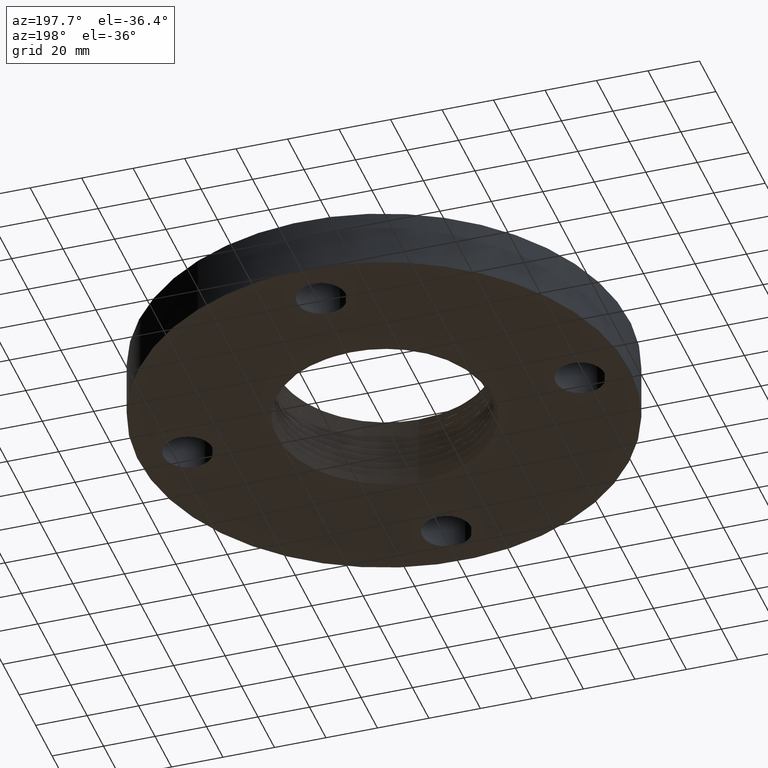
[diagram: clean part render]
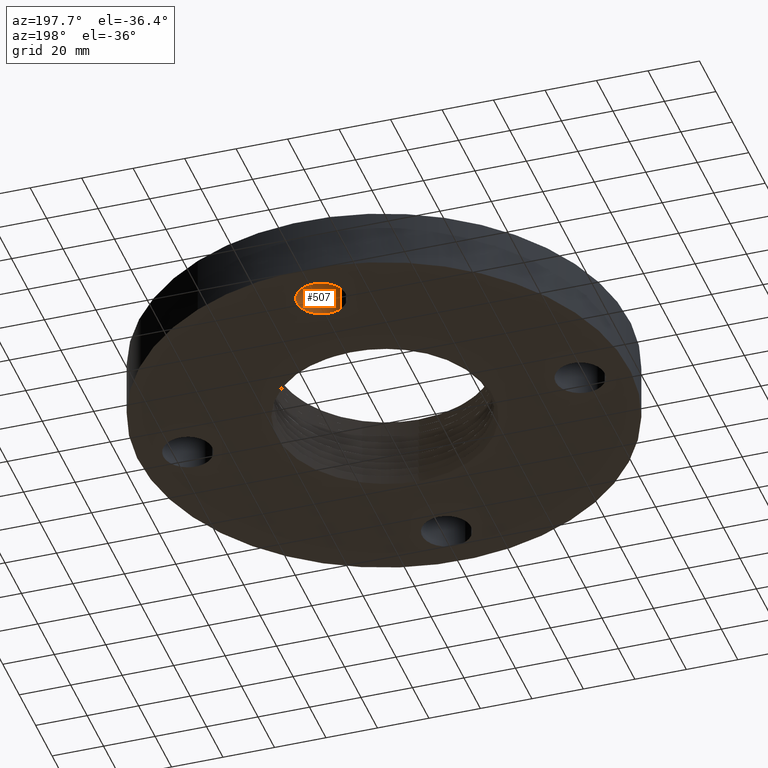
[diagram: same view with one face highlighted and labeled with its STEP entity id]
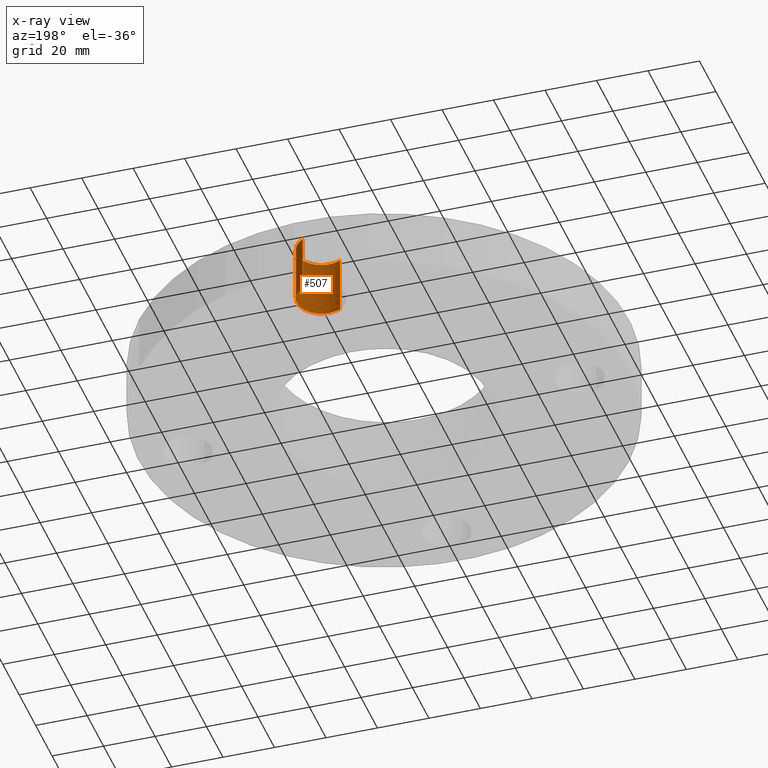
[diagram: x-ray of the same camera — body ghosted, the highlighted face saturated]
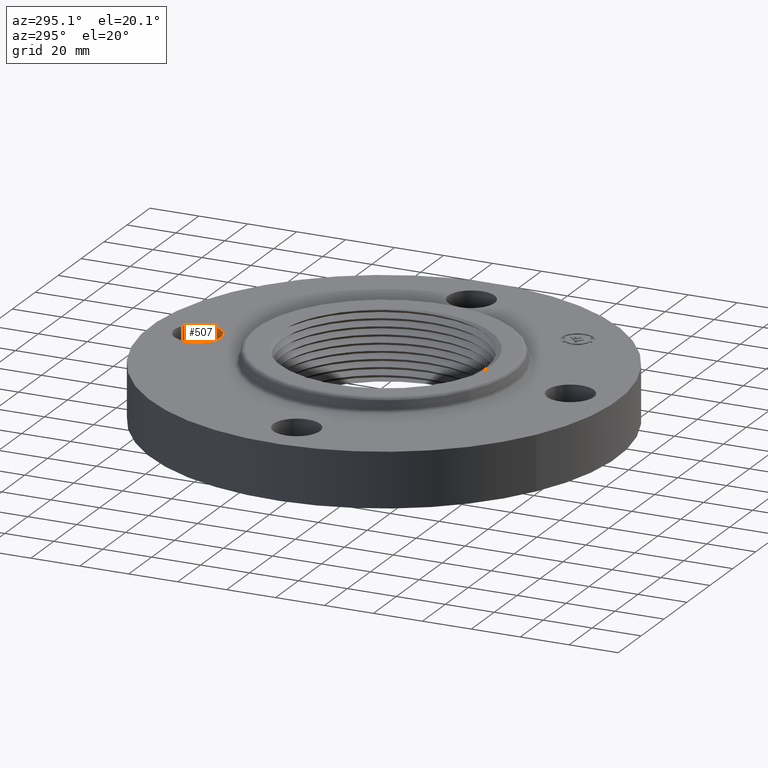
[diagram: same view with one face highlighted and labeled with its STEP entity id]
A machine part, auxiliary view. The second image highlights one B-rep face of the part: STEP entity #507.
The next image is the same camera in x-ray: the body ghosted, the highlighted face saturated — about 13% of this face is hidden behind the body in this view.
A second angle (auxiliary view) of the same face is appended — the face is thin or edge-on in the first view.
In plain terms, the highlighted cylindrical surface (edge-blend (fillet) strip) has radius 9.525 mm, axis along (0, 0, -1).
Its self-contained STEP definition (entity closure, byte-faithful):
#244=AXIS2_PLACEMENT_3D('Circle Axis2P3D',#242,#243,$) ;
#480=AXIS2_PLACEMENT_3D('Cylinder Axis2P3D',#477,#478,#479) ;
#498=AXIS2_PLACEMENT_3D('Circle Axis2P3D',#496,#497,$) ;
#237=CARTESIAN_POINT('Vertex',(-0.179784576977,2.6709065393,0.)) ;
#239=CARTESIAN_POINT('Vertex',(0.179784576977,3.32909346072,0.)) ;
#242=CARTESIAN_POINT('Axis2P3D Location',(-5.59482469102E-016,3.00000000001,0.)) ;
#477=CARTESIAN_POINT('Axis2P3D Location',(-5.51091059619E-016,3.00000000001,0.87606299213)) ;
#482=CARTESIAN_POINT('Line Origine',(0.179784576977,3.32909346072,0.440000000002)) ;
#486=CARTESIAN_POINT('Vertex',(0.179784576977,3.32909346072,0.880000000004)) ;
#489=CARTESIAN_POINT('Line Origine',(-0.179784576977,2.6709065393,0.440000000002)) ;
#493=CARTESIAN_POINT('Vertex',(-0.179784576977,2.6709065393,0.880000000004)) ;
#496=CARTESIAN_POINT('Axis2P3D Location',(-5.51091059619E-016,3.00000000001,0.880000000004)) ;
#243=DIRECTION('Axis2P3D Direction',(0.,0.,-0.0393700787402)) ;
#478=DIRECTION('Axis2P3D Direction',(0.,0.,-0.0393700787402)) ;
#479=DIRECTION('Axis2P3D XDirection',(-0.0188750212049,-0.0345504945626,-0.)) ;
#483=DIRECTION('Vector Direction',(0.,0.,-0.0393700787402)) ;
#490=DIRECTION('Vector Direction',(0.,0.,-0.0393700787402)) ;
#497=DIRECTION('Axis2P3D Direction',(0.,0.,-0.0393700787402)) ;
#484=VECTOR('Line Direction',#483,0.0393700787402) ;
#491=VECTOR('Line Direction',#490,0.0393700787402) ;
#502=ORIENTED_EDGE('',*,*,#488,.F.) ;
#503=ORIENTED_EDGE('',*,*,#246,.T.) ;
#504=ORIENTED_EDGE('',*,*,#495,.T.) ;
#505=ORIENTED_EDGE('',*,*,#500,.F.) ;
#507=ADVANCED_FACE('PartBody',(#506),#481,.F.) ;
#245=CIRCLE('generated circle',#244,0.375000000002) ;
#499=CIRCLE('generated circle',#498,0.375000000002) ;
#481=CYLINDRICAL_SURFACE('generated cylinder',#480,0.375000000002) ;
#246=EDGE_CURVE('',#240,#238,#245,.T.) ;
#488=EDGE_CURVE('',#240,#487,#485,.F.) ;
#495=EDGE_CURVE('',#238,#494,#492,.F.) ;
#500=EDGE_CURVE('',#487,#494,#499,.T.) ;
#501=EDGE_LOOP('',(#502,#503,#504,#505)) ;
#506=FACE_OUTER_BOUND('',#501,.T.) ;
#485=LINE('Line',#482,#484) ;
#492=LINE('Line',#489,#491) ;
#238=VERTEX_POINT('',#237) ;
#240=VERTEX_POINT('',#239) ;
#487=VERTEX_POINT('',#486) ;
#494=VERTEX_POINT('',#493) ;